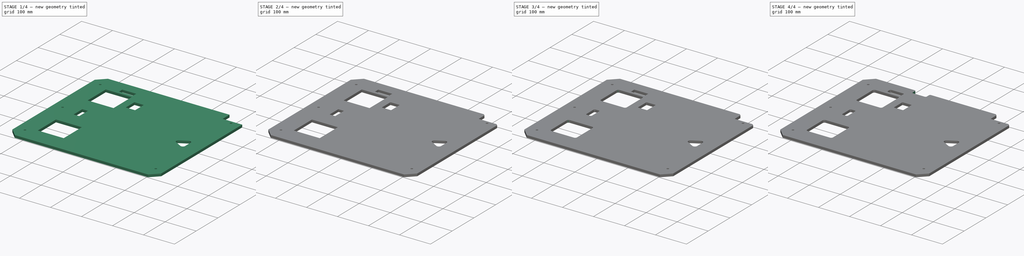
[diagram: build sequence overview — one tinted view per stage of 4, left to right]
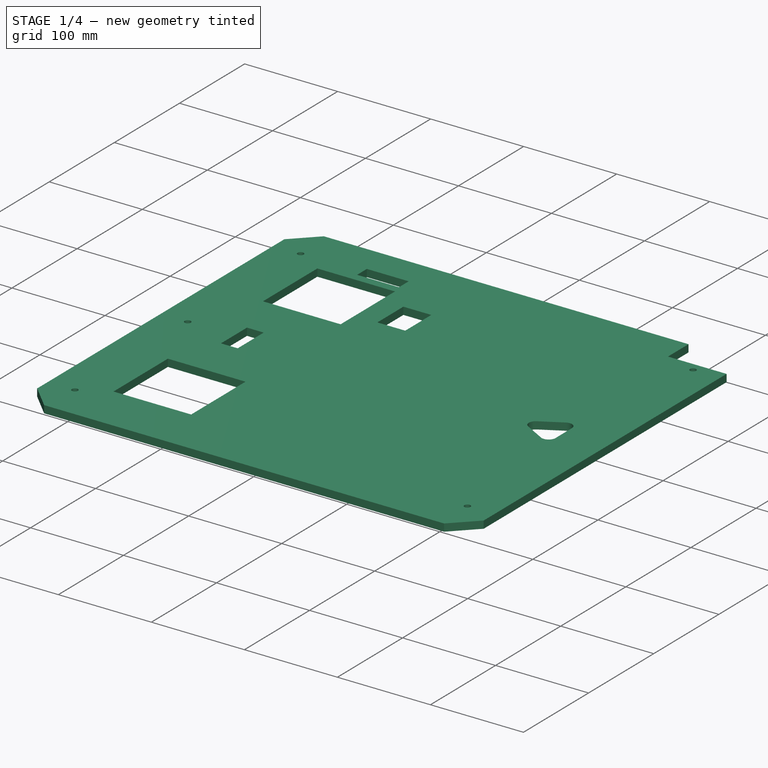
[diagram: stage 1 of 4 — iso view after this stage's code; geometry added in this stage tinted green]
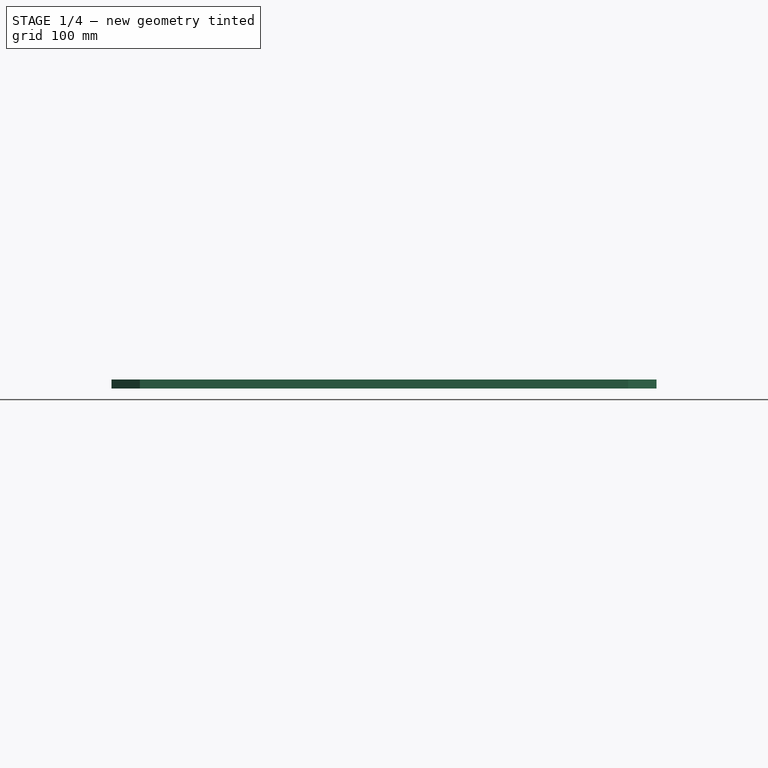
[diagram: stage 1 of 4 — front view after this stage's code; geometry added in this stage tinted green]
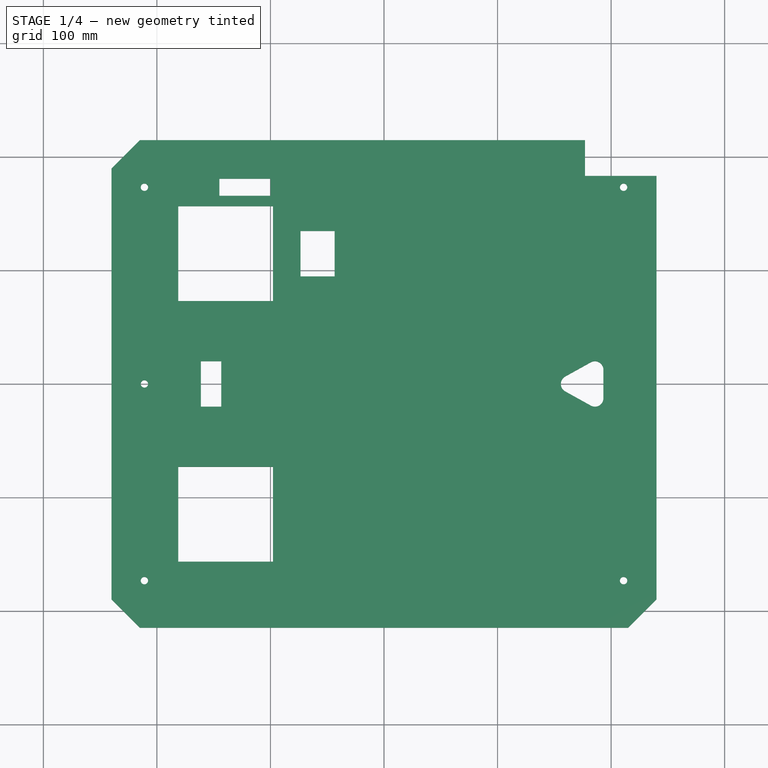
[diagram: stage 1 of 4 — top view after this stage's code; geometry added in this stage tinted green]
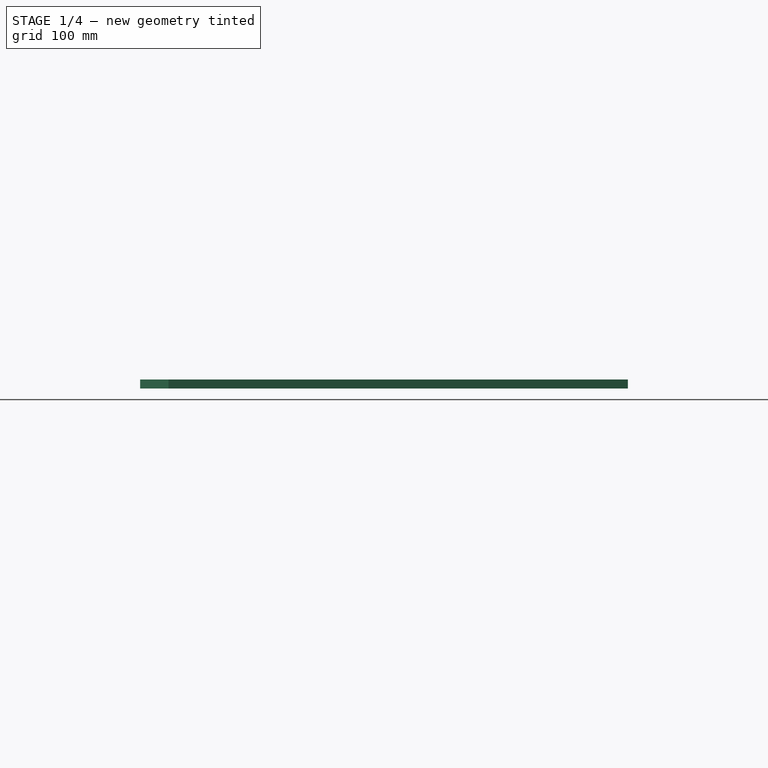
[diagram: stage 1 of 4 — right view after this stage's code; geometry added in this stage tinted green]
FCSTD DOCUMENT  (FreeCAD 0.14R3310 (Git))
Label: PARTE TRASERA (MARCO EXTERIOR)
License: CC-BY 3.0
LicenseURL: http://creativecommons.org/licenses/by/3.0/
objects: PartDesign::Fillet×6, Sketcher::SketchObject×3, PartDesign::Chamfer×2, PartDesign::Pocket×2, PartDesign::Pad×1
note: 17 computed .brp shape members not serialized (recipe doc carries the construction recipe); baked Part::Feature solids carry a one-line shape summary decoded from their .brp

FEATURE [Sketcher::SketchObject] Sketch
  sketch-geometry (4):
    g0: LineSegment StartX=-240 StartY=214.75 StartZ=0 EndX=240 EndY=214.75 EndZ=0
    g1: LineSegment StartX=240 StartY=214.75 StartZ=0 EndX=240 EndY=-214.75 EndZ=0
    g2: LineSegment StartX=240 StartY=-214.75 StartZ=0 EndX=-240 EndY=-214.75 EndZ=0
    g3: LineSegment StartX=-240 StartY=-214.75 StartZ=0 EndX=-240 EndY=214.75 EndZ=0
  constraints (12):
    c: Coincident(g0,g1)
    c: Coincident(g1,g2)
    c: Coincident(g2,g3)
    c: Coincident(g3,g0)
    c: Horizontal(g0)
    c: Horizontal(g2)
    c: Vertical(g1)
    c: Vertical(g3)
    c: Symmetric(g0,g0,g-2)
    c: DistanceX(g0) = 480
    c: Symmetric(g1,g0,g-1)
    c: DistanceY(g1) = -429.5
FEATURE [PartDesign::Pad] Pad
  Length = 8
  Length2 = 100
  Sketch = -> Sketch
  Type = 0
FEATURE [PartDesign::Chamfer] Chamfer
  Base = -> Pad [Edge1,Edge8,Edge5]
  Size = 25
FEATURE [Sketcher::SketchObject] Sketch001
  ExternalGeometry = -> [Chamfer]
  Placement = pos=(0,0,0) rot=(1,0,0;3.14159rad)
  Support = -> Chamfer [Face2]
  sketch-geometry (35):
    g0: Circle CenterX=-211 CenterY=0 CenterZ=0 NormalX=0 NormalY=0 NormalZ=1 Radius=3.25
    g1: Circle CenterX=-211 CenterY=173.25 CenterZ=0 NormalX=0 NormalY=0 NormalZ=1 Radius=3.25
    g2: Circle CenterX=-211 CenterY=-173.25 CenterZ=0 NormalX=0 NormalY=0 NormalZ=1 Radius=3.25
    g3: Circle CenterX=211 CenterY=-173.25 CenterZ=0 NormalX=0 NormalY=0 NormalZ=1 Radius=3.25
    g4: Circle CenterX=211 CenterY=173.25 CenterZ=0 NormalX=0 NormalY=0 NormalZ=1 Radius=3.25
    g5: LineSegment StartX=177 StartY=-183.25 StartZ=0 EndX=240 EndY=-183.25 EndZ=0
    g6: LineSegment StartX=240 StartY=-183.25 StartZ=0 EndX=240 EndY=-214.75 EndZ=0
    g7: LineSegment StartX=240 StartY=-214.75 StartZ=0 EndX=177 EndY=-214.75 EndZ=0
    g8: LineSegment StartX=177 StartY=-214.75 StartZ=0 EndX=177 EndY=-183.25 EndZ=0
    g9: LineSegment StartX=-97.75 StartY=-156.5 StartZ=0 EndX=-181.25 EndY=-156.5 EndZ=0
    g10: LineSegment StartX=-181.25 StartY=-156.5 StartZ=0 EndX=-181.25 EndY=-73 EndZ=0
    g11: LineSegment StartX=-181.25 StartY=-73 StartZ=0 EndX=-97.75 EndY=-73 EndZ=0
    g12: LineSegment StartX=-97.75 StartY=-73 StartZ=0 EndX=-97.75 EndY=-156.5 EndZ=0
    g13: LineSegment StartX=-181.25 StartY=156.5 StartZ=0 EndX=-97.75 EndY=156.5 EndZ=0
    g14: LineSegment StartX=-97.75 StartY=156.5 StartZ=0 EndX=-97.75 EndY=73 EndZ=0
    g15: LineSegment StartX=-97.75 StartY=73 StartZ=0 EndX=-181.25 EndY=73 EndZ=0
    g16: LineSegment StartX=-181.25 StartY=73 StartZ=0 EndX=-181.25 EndY=156.5 EndZ=0
    g17: LineSegment StartX=-161.3 StartY=20 StartZ=0 EndX=-143.3 EndY=20 EndZ=0
    g18: LineSegment StartX=-143.3 StartY=20 StartZ=0 EndX=-143.3 EndY=-20 EndZ=0
    g19: LineSegment StartX=-143.3 StartY=-20 StartZ=0 EndX=-161.3 EndY=-20 EndZ=0
    g20: LineSegment StartX=-161.3 StartY=-20 StartZ=0 EndX=-161.3 EndY=20 EndZ=0
    g21: LineSegment StartX=-145 StartY=-165.75 StartZ=0 EndX=-100 EndY=-165.75 EndZ=0
    g22: LineSegment StartX=-100 StartY=-165.75 StartZ=0 EndX=-100 EndY=-180.75 EndZ=0
    g23: LineSegment StartX=-100 StartY=-180.75 StartZ=0 EndX=-145 EndY=-180.75 EndZ=0
    g24: LineSegment StartX=-145 StartY=-180.75 StartZ=0 EndX=-145 EndY=-165.75 EndZ=0
    g25: LineSegment StartX=-73.5 StartY=-94.75 StartZ=0 EndX=-43.5 EndY=-94.75 EndZ=0
    g26: LineSegment StartX=-43.5 StartY=-94.75 StartZ=0 EndX=-43.5 EndY=-134.75 EndZ=0
    g27: LineSegment StartX=-43.5 StartY=-134.75 StartZ=0 EndX=-73.5 EndY=-134.75 EndZ=0
    g28: LineSegment StartX=-73.5 StartY=-134.75 StartZ=0 EndX=-73.5 EndY=-94.75 EndZ=0
    g29: LineSegment StartX=193.25 StartY=12.5 StartZ=0 EndX=193.25 EndY=-12.5 EndZ=0
    g30: ArcOfCircle CenterX=185.75 CenterY=12.5 CenterZ=0 NormalX=0 NormalY=0 NormalZ=1 Radius=7.5 StartAngle=3.3327e-06 EndAngle=2.07781
    g31: LineSegment StartX=182.108 StartY=19.0564 StartZ=0 EndX=159.604 EndY=6.55647 EndZ=0
    g32: ArcOfCircle CenterX=185.75 CenterY=-12.5 CenterZ=0 NormalX=0 NormalY=0 NormalZ=1 Radius=7.5 StartAngle=4.20537 EndAngle=6.28318
    g33: LineSegment StartX=182.108 StartY=-19.0564 StartZ=0 EndX=159.604 EndY=-6.55647 EndZ=0
    g34: ArcOfCircle CenterX=163.246 CenterY=0 CenterZ=0 NormalX=0 NormalY=0 NormalZ=1 Radius=7.5 StartAngle=2.07781 EndAngle=4.20537
  constraints (102):
    c: PointOnObject(g0,g-1)
    c: Radius(g0) = 3.25
    c: Distance(g0,g-3) = 29
    c: Equal(g0,g1)
    c: Distance(g1,g-3) = 29
    c: Distance(g1,g-4) = 41.5
    c: Equal(g2,g0)
    c: Symmetric(g2,g1,g-1)
    c: Equal(g4,g3)
    c: Symmetric(g3,g4,g-1)
    c: Symmetric(g4,g1,g-2)
    c: Equal(g4,g1)
    c: Coincident(g5,g6)
    c: Coincident(g6,g7)
    c: Coincident(g7,g8)
    c: Coincident(g8,g5)
    c: Horizontal(g5)
    c: Horizontal(g7)
    c: Vertical(g6)
    c: Vertical(g8)
    c: Coincident(g6,g-6)
    c: Distance(g5) = 63
    c: Distance(g8) = 31.5
    c: Coincident(g9,g10)
    c: Coincident(g10,g11)
    c: Coincident(g11,g12)
    c: Coincident(g12,g9)
    c: Horizontal(g9)
    c: Horizontal(g11)
    c: Vertical(g10)
    c: Vertical(g12)
    c: Distance(g9) = 83.5
    c: Distance(g12) = 83.5
    c: Distance(g9,g-5) = 58.25
    c: Distance(g10,g-3) = 58.75
    c: Coincident(g13,g14)
    c: Coincident(g14,g15)
    c: Coincident(g15,g16)
    c: Coincident(g16,g13)
    c: Horizontal(g13)
    c: Horizontal(g15)
    c: Vertical(g14)
    c: Vertical(g16)
    c: Symmetric(g14,g11,g-1)
    c: Symmetric(g13,g9,g-1)
    c: Coincident(g17,g18)
    c: Coincident(g18,g19)
    c: Coincident(g19,g20)
    c: Coincident(g20,g17)
    c: Horizontal(g17)
    c: Horizontal(g19)
    c: Vertical(g18)
    c: Vertical(g20)
    c: Symmetric(g18,g17,g-1)
    c: DistanceY(g18) = -40
    c: DistanceX(g17) = 18
    c: Distance(g17,g-3) = 78.7
    c: Coincident(g21,g22)
    c: Coincident(g22,g23)
    c: Coincident(g23,g24)
    c: Coincident(g24,g21)
    c: Horizontal(g21)
    c: Horizontal(g23)
    c: Vertical(g22)
    c: Vertical(g24)
    c: Distance(g21) = 45
    c: Distance(g22) = 15
    c: Distance(g23,g-3) = 95
    c: Distance(g21,g9) = 9.25
    c: Coincident(g25,g26)
    c: Coincident(g26,g27)
    c: Coincident(g27,g28)
    c: Coincident(g28,g25)
    c: Horizontal(g25)
    c: Horizontal(g27)
    c: Vertical(g26)
    c: Vertical(g28)
    c: DistanceY(g26) = -40
    c: DistanceX(g27) = -30
    c: Distance(g27,g12) = 24.25
    c: Distance(g26,g-5) = 80
    c: Vertical(g29)
    c: Distance(g29,g-6) = 46.75
    c: Symmetric(g29,g29,g-1)
    c: Distance(g29) = 25
    c: Coincident(g30,g29)
    c: Radius(g30) = 7.5
    c: Coincident(g31,g30)
    c: Angle(g31,g29) = 1.06378
    c: Tangent(g31,g30)
    c: Coincident(g32,g29)
    c: Symmetric(g32,g30,g-1)
    c: Coincident(g33,g32)
    c: Tangent(g33,g32)
    c: Symmetric(g31,g33,g-1)
    c: PointOnObject(g34,g-1)
    c: Radius(g34) = 7.5
    c: Coincident(g34,g31)
    c: Tangent(g34,g31)
    c: Coincident(g34,g33)
    c: Tangent(g34,g33)
    c: Tangent(g30,g29)
FEATURE [PartDesign::Pocket] Pocket
  Length = 5
  Sketch = -> Sketch001
  Type = 1
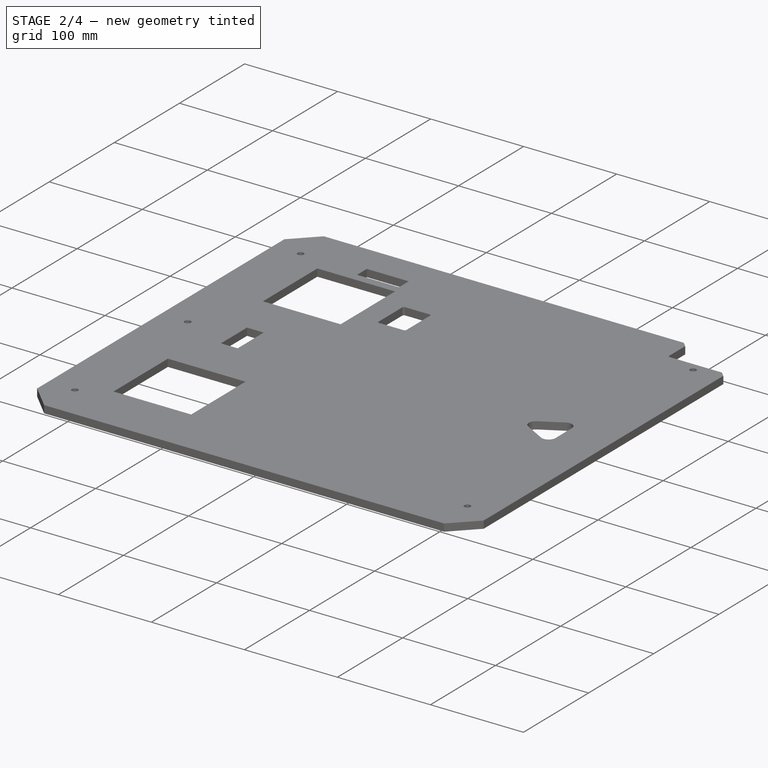
[diagram: stage 2 of 4 — iso view after this stage's code; geometry added in this stage tinted green]
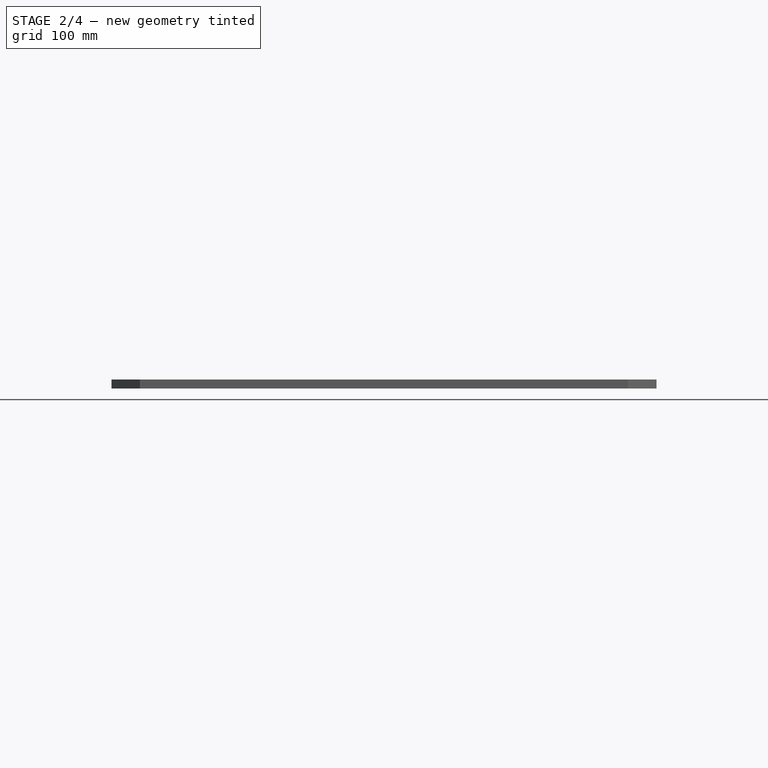
[diagram: stage 2 of 4 — front view after this stage's code; geometry added in this stage tinted green]
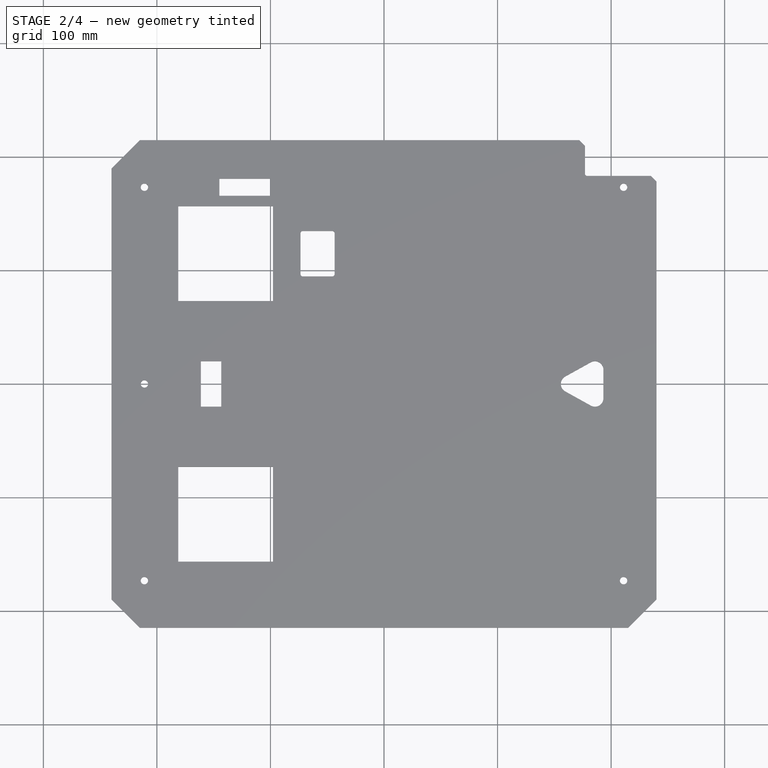
[diagram: stage 2 of 4 — top view after this stage's code; geometry added in this stage tinted green]
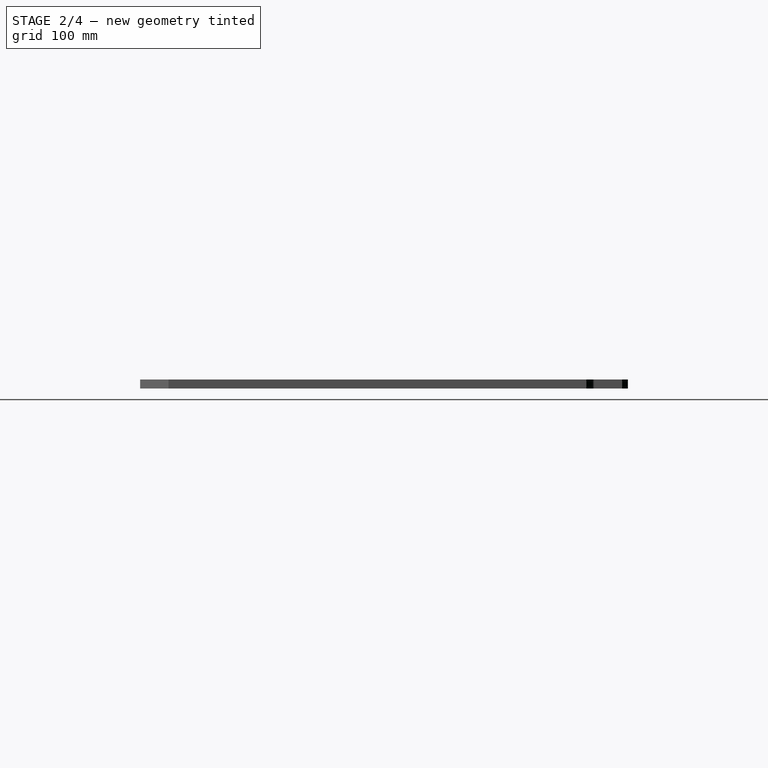
[diagram: stage 2 of 4 — right view after this stage's code; geometry added in this stage tinted green]
FEATURE [PartDesign::Chamfer] Chamfer001
  Base = -> Pocket [Edge2,Edge85]
  Size = 5
FEATURE [PartDesign::Fillet] Fillet
  Base = -> Chamfer001 [Edge89]
  Radius = 2
FEATURE [PartDesign::Fillet] Fillet001
  Base = -> Fillet [Edge89,Edge86,Edge88,Edge91]
  Radius = 2
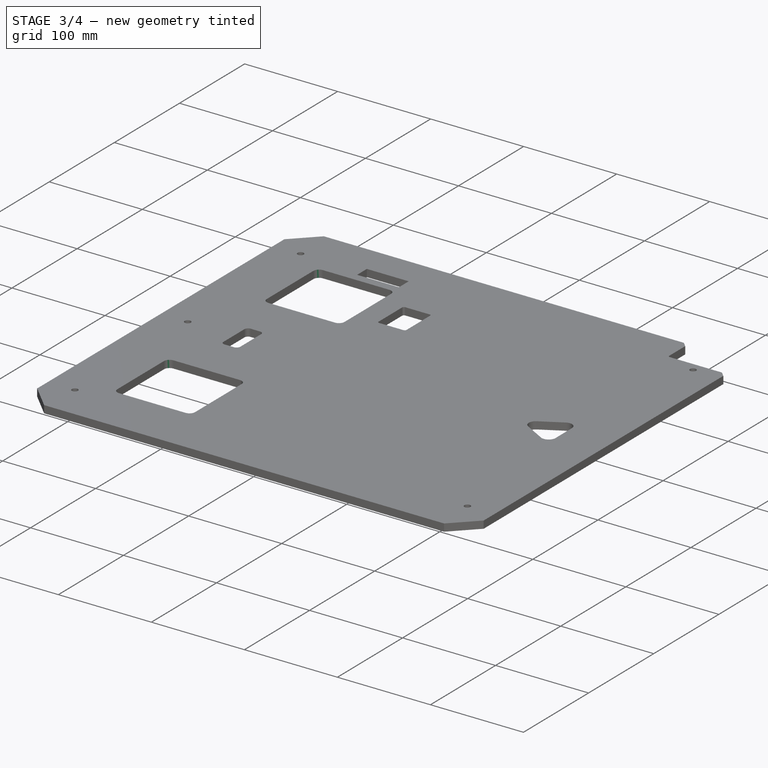
[diagram: stage 3 of 4 — iso view after this stage's code; geometry added in this stage tinted green]
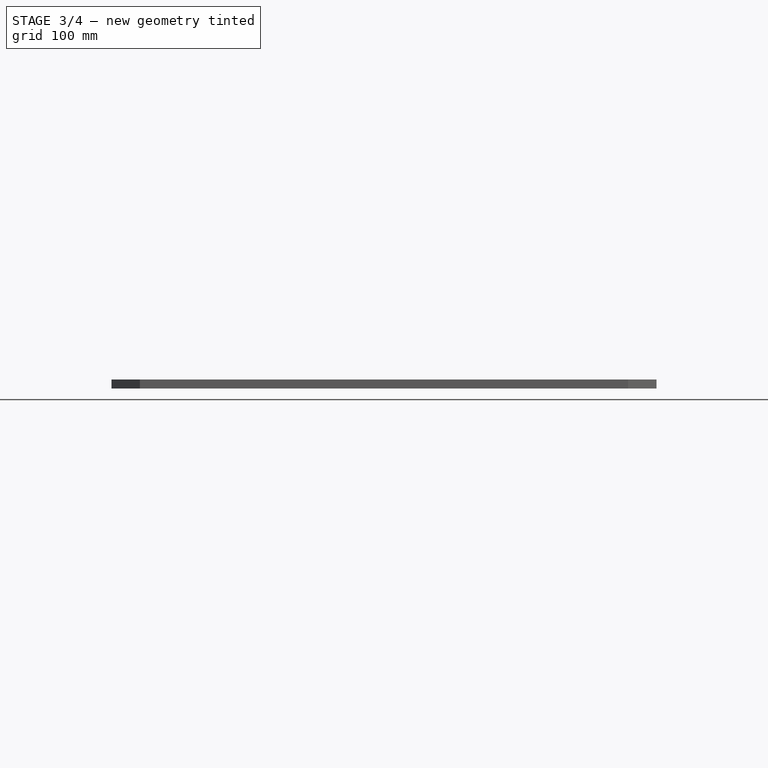
[diagram: stage 3 of 4 — front view after this stage's code; geometry added in this stage tinted green]
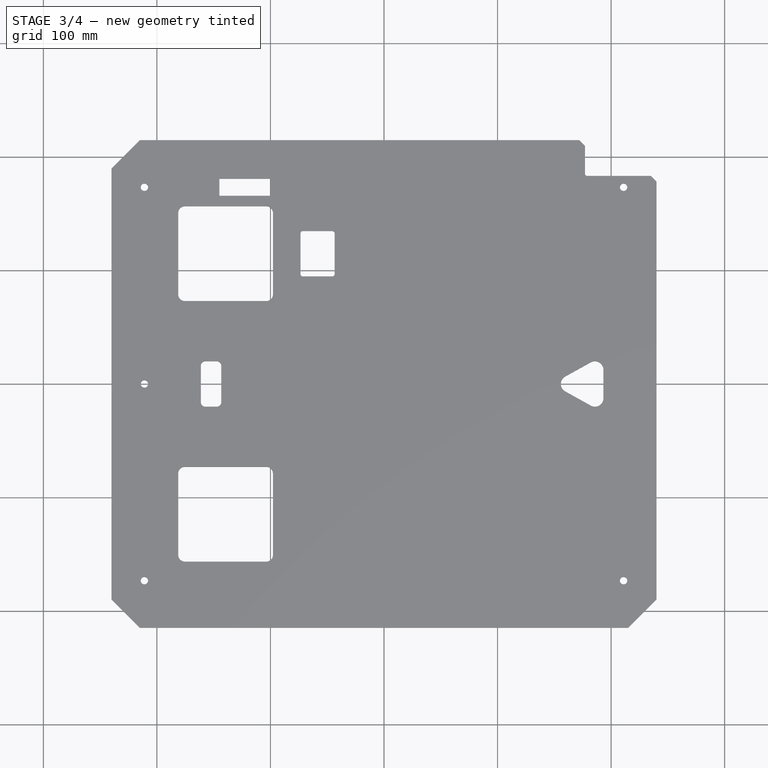
[diagram: stage 3 of 4 — top view after this stage's code; geometry added in this stage tinted green]
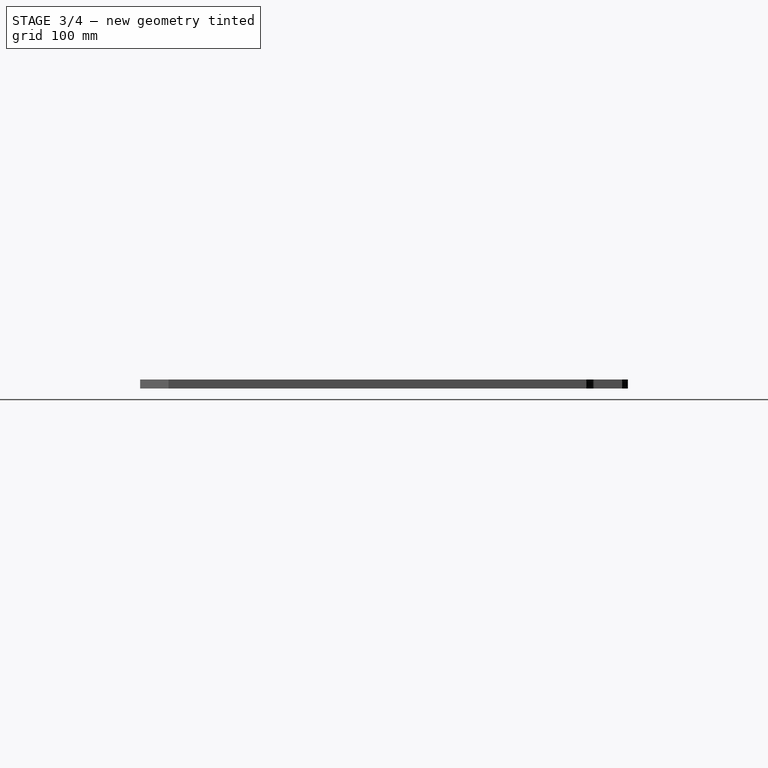
[diagram: stage 3 of 4 — right view after this stage's code; geometry added in this stage tinted green]
FEATURE [PartDesign::Fillet] Fillet002
  Base = -> Fillet001 [Edge95,Edge93,Edge90,Edge92,Edge130,Edge131,Edge133,Edge128]
  Radius = 6
FEATURE [PartDesign::Fillet] Fillet003
  Base = -> Fillet002 [Edge139,Edge136,Edge138,Edge141]
  Radius = 4
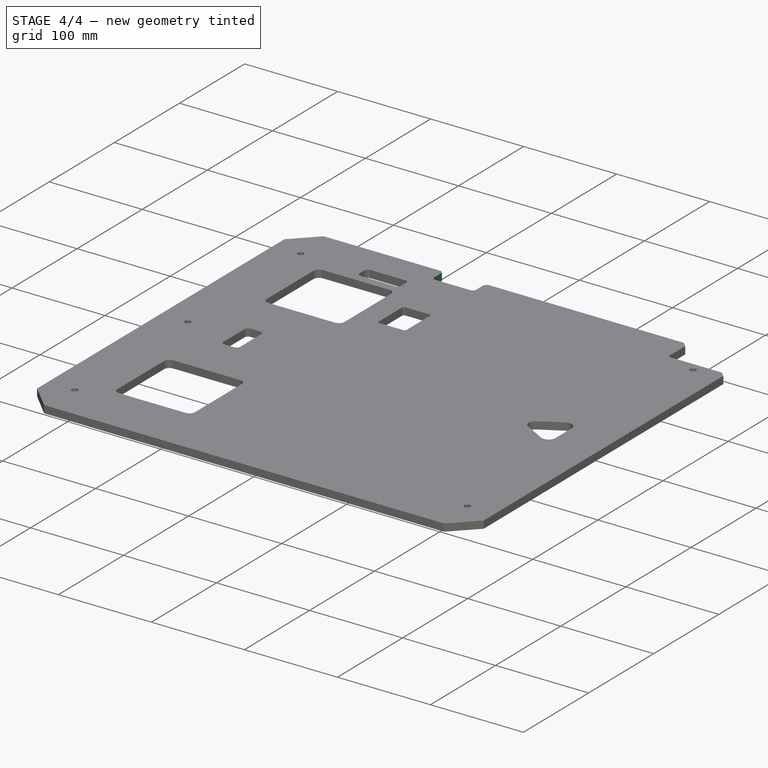
[diagram: stage 4 of 4 — iso view after this stage's code; geometry added in this stage tinted green]
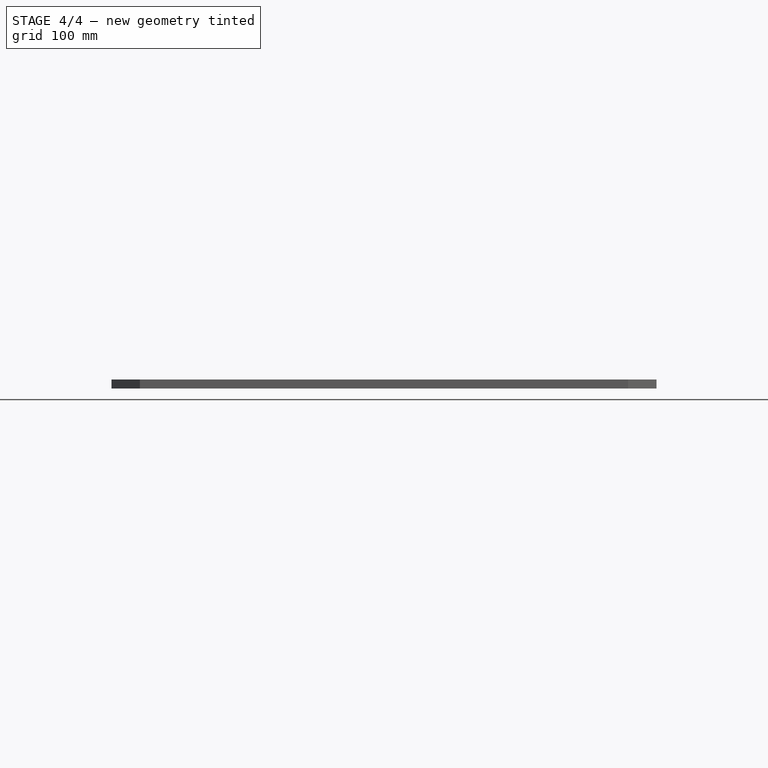
[diagram: stage 4 of 4 — front view after this stage's code; geometry added in this stage tinted green]
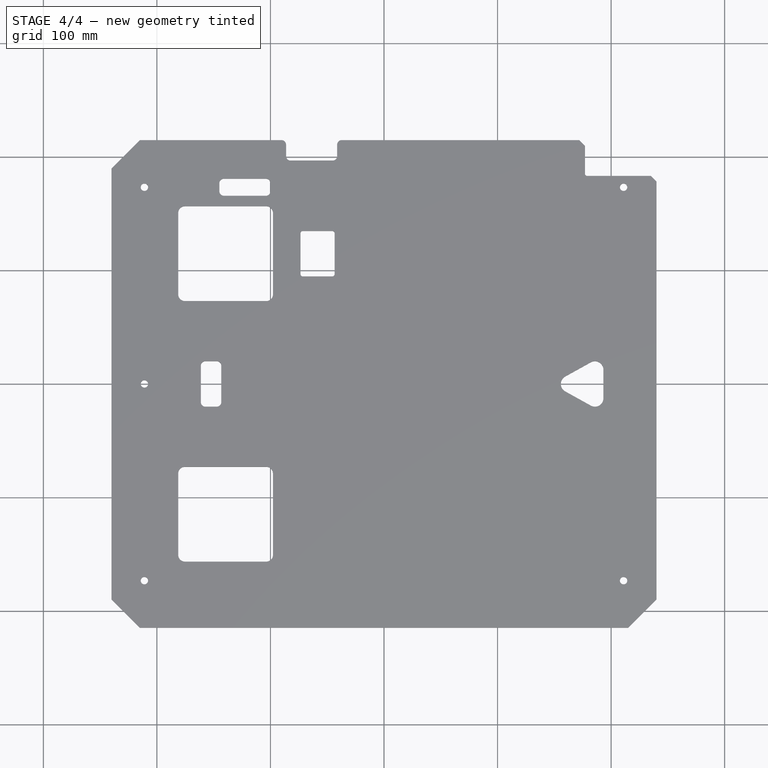
[diagram: stage 4 of 4 — top view after this stage's code; geometry added in this stage tinted green]
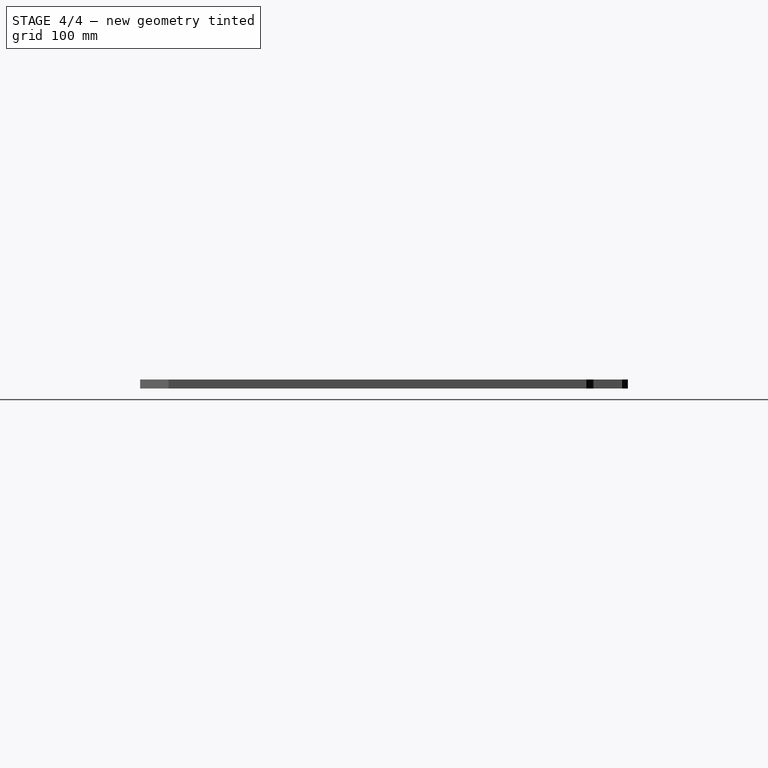
[diagram: stage 4 of 4 — right view after this stage's code; geometry added in this stage tinted green]
FEATURE [PartDesign::Fillet] Fillet004
  Base = -> Fillet003 [Edge139,Edge137,Edge134,Edge136]
  Radius = 4
FEATURE [Sketcher::SketchObject] Sketch002
  ExternalGeometry = -> [Fillet004]
  Placement = pos=(0,0,0) rot=(1,0,0;3.14159rad)
  Support = -> Fillet004 [Face1]
  sketch-geometry (4):
    g0: LineSegment StartX=-41.25 StartY=-214.75 StartZ=0 EndX=-86.25 EndY=-214.75 EndZ=0
    g1: LineSegment StartX=-86.25 StartY=-214.75 StartZ=0 EndX=-86.25 EndY=-196.75 EndZ=0
    g2: LineSegment StartX=-86.25 StartY=-196.75 StartZ=0 EndX=-41.25 EndY=-196.75 EndZ=0
    g3: LineSegment StartX=-41.25 StartY=-196.75 StartZ=0 EndX=-41.25 EndY=-214.75 EndZ=0
  constraints (12):
    c: Coincident(g0,g1)
    c: Coincident(g1,g2)
    c: Coincident(g2,g3)
    c: Coincident(g3,g0)
    c: Horizontal(g0)
    c: Horizontal(g2)
    c: Vertical(g1)
    c: Vertical(g3)
    c: PointOnObject(g0,g-3)
    c: DistanceY(g3) = -18
    c: Distance(g1,g-4) = 153.75
    c: DistanceX(g2) = 45
FEATURE [PartDesign::Pocket] Pocket001
  Length = 5
  Sketch = -> Sketch002
  Type = 1
FEATURE [PartDesign::Fillet] Fillet005
  Base = -> Pocket001 [Edge93,Edge91,Edge87,Edge89]
  Radius = 4
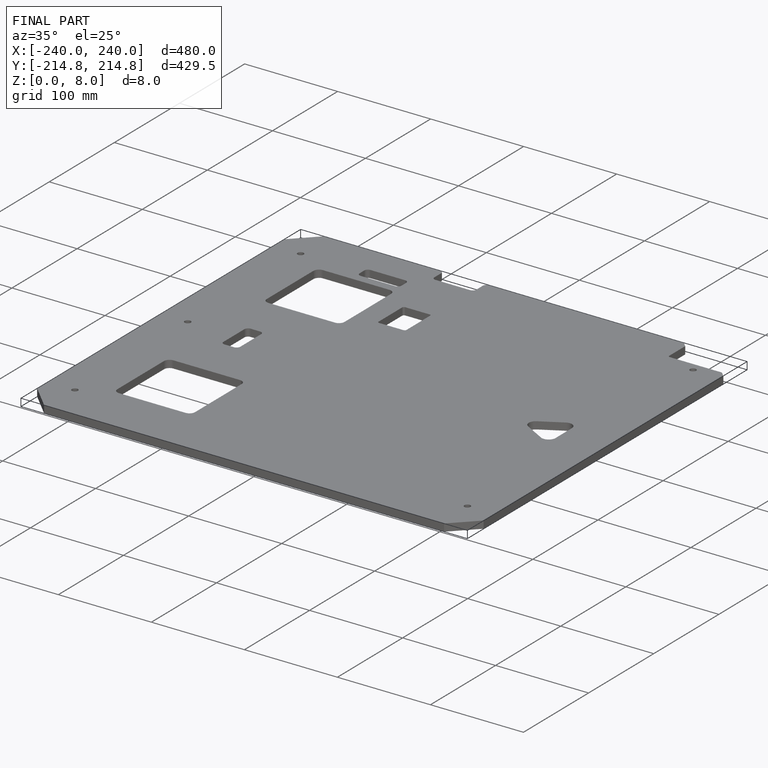
[diagram: finished part — iso view with bounding-box wireframe]
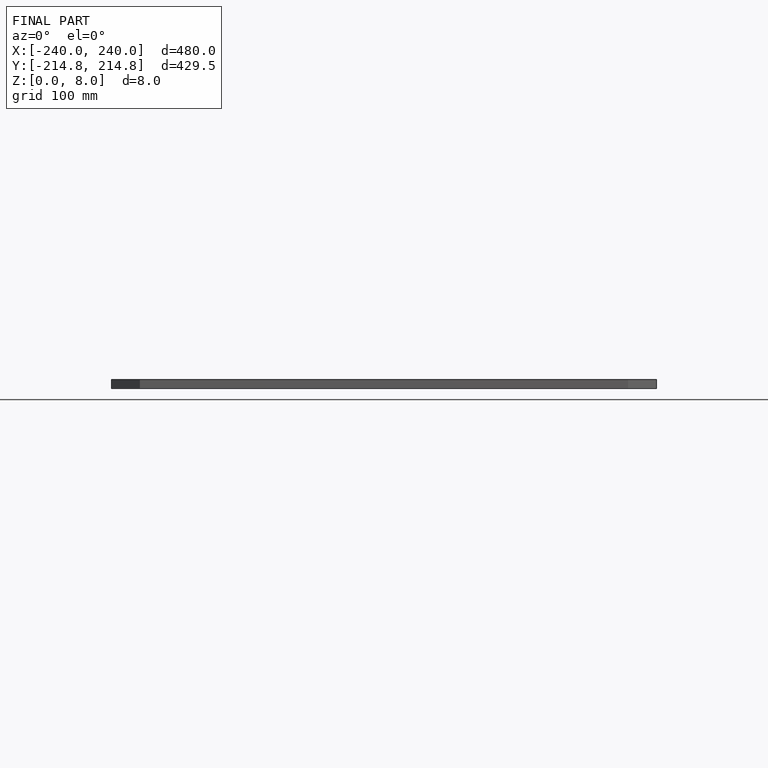
[diagram: finished part — front view with bounding-box wireframe]
